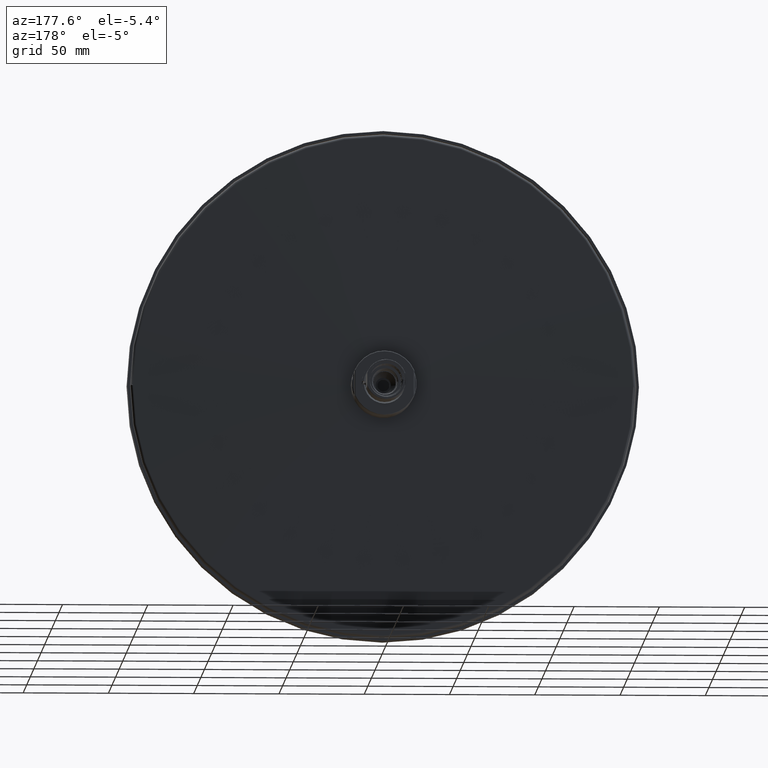
[diagram: clean part render]
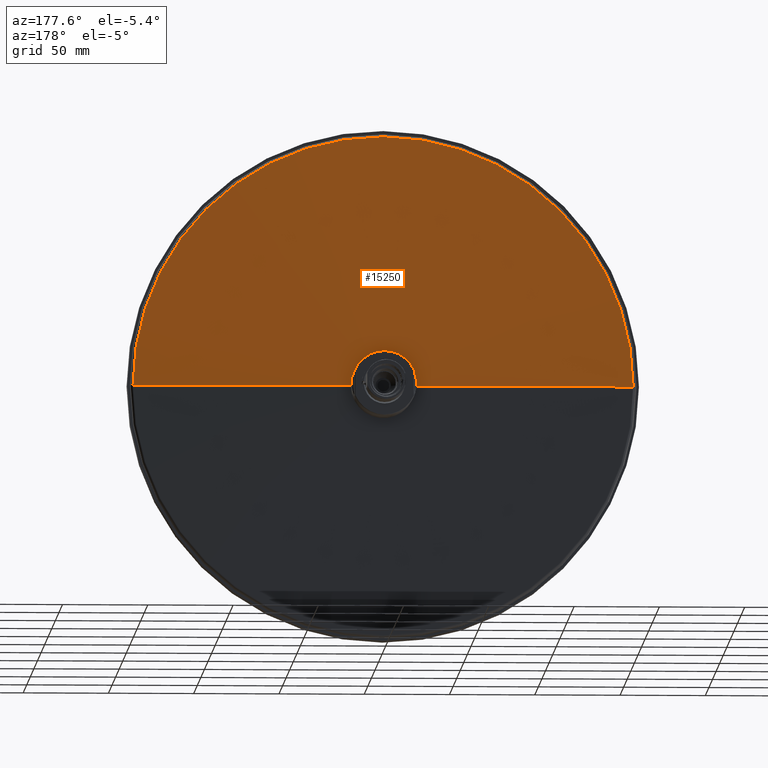
[diagram: same view with one face highlighted and labeled with its STEP entity id]
A machine part, auxiliary view. The second image highlights one B-rep face of the part: STEP entity #15250.
In plain terms, the highlighted conical surface has half-angle 89.5 deg.
Its self-contained STEP definition (entity closure, byte-faithful):
#14989=CARTESIAN_POINT('',(0.E0,5.012976068705E0,0.E0));
#14990=DIRECTION('',(0.E0,1.E0,0.E0));
#14991=DIRECTION('',(-1.E0,0.E0,0.E0));
#14992=AXIS2_PLACEMENT_3D('',#14989,#14990,#14991);
#14994=CARTESIAN_POINT('',(0.E0,5.012976068705E0,0.E0));
#14995=DIRECTION('',(0.E0,1.E0,0.E0));
#14996=DIRECTION('',(9.999989123022E-1,0.E0,1.474921815006E-3));
#14997=AXIS2_PLACEMENT_3D('',#14994,#14995,#14996);
#15014=CARTESIAN_POINT('',(0.E0,6.144965054148E0,0.E0));
#15015=DIRECTION('',(0.E0,1.E0,0.E0));
#15016=DIRECTION('',(-1.E0,0.E0,0.E0));
#15017=AXIS2_PLACEMENT_3D('',#15014,#15015,#15016);
#15019=DIRECTION('',(9.999619230642E-1,-8.726535498368E-3,0.E0));
#15020=VECTOR('',#15019,1.297180290683E2);
#15021=CARTESIAN_POINT('',(1.69E1,6.144965054147E0,0.E0));
#15022=LINE('',#15021,#15020);
#15023=DIRECTION('',(-9.999619230642E-1,-8.726535498368E-3,0.E0));
#15024=VECTOR('',#15023,1.297180290683E2);
#15025=CARTESIAN_POINT('',(-1.69E1,6.144965054147E0,0.E0));
#15026=LINE('',#15025,#15024);
#15165=CARTESIAN_POINT('',(-1.466130898032E2,5.012976068705E0,
3.590985022812E-14));
#15166=CARTESIAN_POINT('',(1.466129303325E2,5.012976068705E0,
2.162428445162E-1));
#15167=VERTEX_POINT('',#15165);
#15168=VERTEX_POINT('',#15166);
#15169=CARTESIAN_POINT('',(1.466130898032E2,5.012976068705E0,
1.122713033652E-13));
#15170=VERTEX_POINT('',#15169);
#15171=CARTESIAN_POINT('',(-1.69E1,6.144965054147E0,0.E0));
#15172=VERTEX_POINT('',#15171);
#15173=CARTESIAN_POINT('',(1.69E1,6.144965054148E0,1.294056220237E-14));
#15174=VERTEX_POINT('',#15173);
#15235=CARTESIAN_POINT('',(0.E0,5.578970561426E0,0.E0));
#15236=DIRECTION('',(0.E0,-1.E0,0.E0));
#15237=DIRECTION('',(-1.E0,0.E0,0.E0));
#15238=AXIS2_PLACEMENT_3D('',#15235,#15236,#15237);
#15239=CONICAL_SURFACE('',#15238,8.175654490160E1,8.95E1);
#15240=ORIENTED_EDGE('',*,*,#15224,.F.);
#15241=ORIENTED_EDGE('',*,*,#15222,.F.);
#15243=ORIENTED_EDGE('',*,*,#15242,.F.);
#15245=ORIENTED_EDGE('',*,*,#15244,.T.);
#15247=ORIENTED_EDGE('',*,*,#15246,.T.);
#15248=EDGE_LOOP('',(#15240,#15241,#15243,#15245,#15247));
#15249=FACE_OUTER_BOUND('',#15248,.F.);
#15250=ADVANCED_FACE('',(#15249),#15239,.T.);
#14993=CIRCLE('',#14992,1.466130898032E2);
#14998=CIRCLE('',#14997,1.466130898032E2);
#15018=CIRCLE('',#15017,1.69E1);
#15222=EDGE_CURVE('',#15167,#15168,#14993,.T.);
#15224=EDGE_CURVE('',#15168,#15170,#14998,.T.);
#15242=EDGE_CURVE('',#15172,#15167,#15026,.T.);
#15244=EDGE_CURVE('',#15172,#15174,#15018,.T.);
#15246=EDGE_CURVE('',#15174,#15170,#15022,.T.);